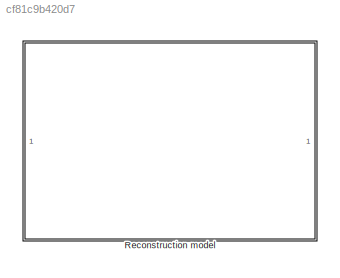
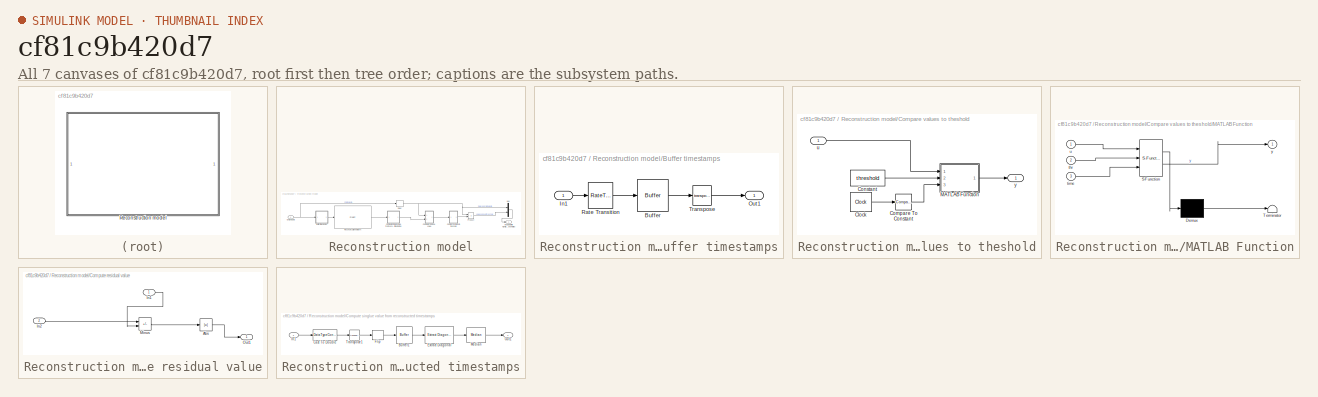
[diagram: thumbnail index - all 7 canvases of the model, root first then tree order]
MODEL slx_cf81c9b420d7
KIND library
CONFIG AbsTol = auto
CONFIG EnableMultiTasking = off
CONFIG FixedStep = auto
CONFIG MaxStep = auto
CONFIG MinStep = auto
CONFIG RelTol = 1e-3
CONFIG SampleTimeConstraint = Unconstrained
CONFIG SolverName = VariableStepAuto
CONFIG StartTime = 0.0
CONFIG StopTime = 10.0
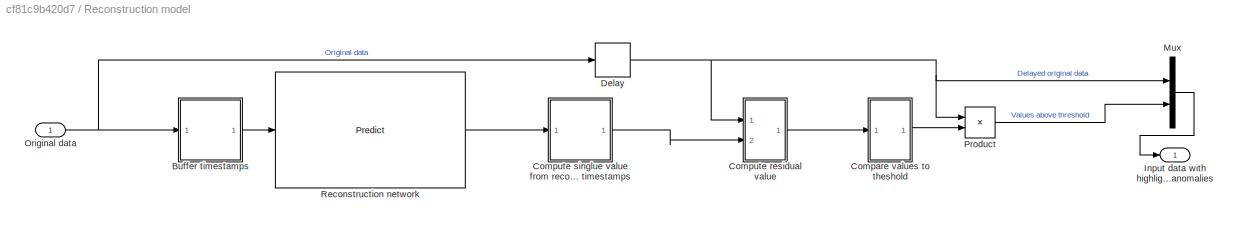
BLOCK [SubSystem] Reconstruction model
  Ports = [1, 1]
  RequestExecContextInheritance = off
BLOCK [SubSystem] Reconstruction model/Buffer timestamps
  Ports = [1, 1]
  RequestExecContextInheritance = off
BLOCK [Buffer] Reconstruction model/Buffer timestamps/Buffer
  N = BufferLength
  OutputFrames = off
  V = BufferLength-1
BLOCK [Inport] Reconstruction model/Buffer timestamps/In1
BLOCK [Outport] Reconstruction model/Buffer timestamps/Out1
BLOCK [RateTransition] Reconstruction model/Buffer timestamps/Rate Transition
  OutPortSampleTime = 1
BLOCK [Math] Reconstruction model/Buffer timestamps/Transpose
  Operator = transpose
  Ports = [1, 1]
BLOCK [SubSystem] Reconstruction model/Compare values to theshold
  Ports = [1, 1]
  RequestExecContextInheritance = off
BLOCK [Clock] Reconstruction model/Compare values to theshold/Clock
  DisplayTime = on
BLOCK [Reference] Reconstruction model/Compare values to theshold/Compare To Constant  REF=simulink/Logic and Bit
Operations/Compare
To Constant
  Ports = [1, 1]
  SourceBlock = simulink/Logic and Bit\nOperations/Compare\nTo Constant
  SourceProductBaseCode = SL
  SourceType = Compare To Constant
BLOCK [Constant] Reconstruction model/Compare values to theshold/Constant
  Value = threshold
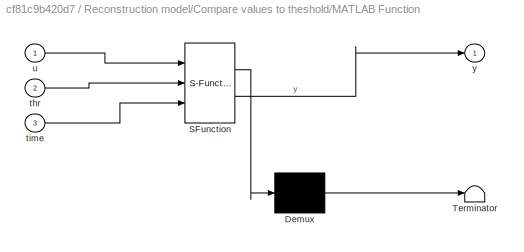
BLOCK [SubSystem] Reconstruction model/Compare values to theshold/MATLAB Function
  ErrorFcn = Stateflow.Translate.translate
  PermitHierarchicalResolution = ExplicitOnly
  Ports = [3, 1]
  RequestExecContextInheritance = off
  SFBlockType = MATLAB Function
  TreatAsAtomicUnit = on
BLOCK [Demux] Reconstruction model/Compare values to theshold/MATLAB Function/ Demux 
  Outputs = 1
  Ports = [1, 1]
BLOCK [S-Function] Reconstruction model/Compare values to theshold/MATLAB Function/ SFunction 
  EnableBusSupport = on
  FunctionName = sf_sfun
  PortCounts = [3 2]
  Ports = [3, 2]
  SFcnIsStateOwnerBlock = off
  SFunctionDeploymentMode = off
  Tag = Stateflow S-Function 1
BLOCK [Terminator] Reconstruction model/Compare values to theshold/MATLAB Function/ Terminator 
BLOCK [Inport] Reconstruction model/Compare values to theshold/MATLAB Function/thr
  Port = 2
BLOCK [Inport] Reconstruction model/Compare values to theshold/MATLAB Function/time
  Port = 3
BLOCK [Inport] Reconstruction model/Compare values to theshold/MATLAB Function/u
BLOCK [Outport] Reconstruction model/Compare values to theshold/MATLAB Function/y
BLOCK [Inport] Reconstruction model/Compare values to theshold/u
BLOCK [Outport] Reconstruction model/Compare values to theshold/y
BLOCK [SubSystem] Reconstruction model/Compute residual value
  Ports = [2, 1]
  RequestExecContextInheritance = off
BLOCK [Abs] Reconstruction model/Compute residual value/Abs
  SaturateOnIntegerOverflow = off
BLOCK [Inport] Reconstruction model/Compute residual value/In1
BLOCK [Inport] Reconstruction model/Compute residual value/In2
  Port = 2
BLOCK [Sum] Reconstruction model/Compute residual value/Minus
  IconShape = rectangular
  Inputs = +-
  Ports = [2, 1]
BLOCK [Outport] Reconstruction model/Compute residual value/Out1
BLOCK [SubSystem] Reconstruction model/Compute singlue value from reconstructed timestamps
  Ports = [1, 1]
  RequestExecContextInheritance = off
BLOCK [Buffer] Reconstruction model/Compute singlue value from reconstructed timestamps/Buffer1
  N = BufferLength
  OutputFrames = off
  V = BufferLength-1
BLOCK [DataTypeConversion] Reconstruction model/Compute singlue value from reconstructed timestamps/Cast To Double
  OutDataTypeStr = double
  RndMeth = Floor
  SaturateOnIntegerOverflow = off
BLOCK [Reference] Reconstruction model/Compute singlue value from reconstructed timestamps/Extract Diagonal  REF=matrix_library/Extract Diagonal
  Ports = [1, 1]
  SourceBlock = matrix_library/Extract Diagonal
  SourceProductBaseCode = SL
  SourceType = Extract Diagonal
BLOCK [DSPFlip] Reconstruction model/Compute singlue value from reconstructed timestamps/Flip
BLOCK [Inport] Reconstruction model/Compute singlue value from reconstructed timestamps/In1
BLOCK [Reference] Reconstruction model/Compute singlue value from reconstructed timestamps/Median  REF=dspstat3/Median
  Ports = [1, 1]
  SourceBlock = dspstat3/Median
  SourceProductBaseCode = DS
  SourceType = Median
BLOCK [Outport] Reconstruction model/Compute singlue value from reconstructed timestamps/Out1
BLOCK [Math] Reconstruction model/Compute singlue value from reconstructed timestamps/Transpose1
  Operator = transpose
  Ports = [1, 1]
BLOCK [Delay] Reconstruction model/Delay
  DelayLength = BufferLength
  InputPortMap = u0
  Ports = [1, 1]
BLOCK [Outport] Reconstruction model/Input data with highlighted anomalies
BLOCK [Mux] Reconstruction model/Mux
  DisplayOption = bar
  Inputs = 2
  Ports = [2, 1]
BLOCK [Inport] Reconstruction model/Original data
BLOCK [Product] Reconstruction model/Product
  Ports = [2, 1]
BLOCK [Reference] Reconstruction model/Reconstruction network  REF=deeplib/Predict
  Ports = [1, 1]
  SourceBlock = deeplib/Predict
  SourceProductBaseCode = NN
  SourceType = Predict
LINE Reconstruction model/Buffer timestamps/Buffer:1 -> Reconstruction model/Buffer timestamps/Transpose:1
LINE Reconstruction model/Buffer timestamps/In1:1 -> Reconstruction model/Buffer timestamps/Rate Transition:1
LINE Reconstruction model/Buffer timestamps/Rate Transition:1 -> Reconstruction model/Buffer timestamps/Buffer:1
LINE Reconstruction model/Buffer timestamps/Transpose:1 -> Reconstruction model/Buffer timestamps/Out1:1
LINE Reconstruction model/Buffer timestamps:1 -> Reconstruction model/Reconstruction network:1
LINE Reconstruction model/Compare values to theshold/Clock:1 -> Reconstruction model/Compare values to theshold/Compare To Constant:1
LINE Reconstruction model/Compare values to theshold/Compare To Constant:1 -> Reconstruction model/Compare values to theshold/MATLAB Function:3
LINE Reconstruction model/Compare values to theshold/Constant:1 -> Reconstruction model/Compare values to theshold/MATLAB Function:2
LINE Reconstruction model/Compare values to theshold/MATLAB Function:1 -> Reconstruction model/Compare values to theshold/y:1
LINE Reconstruction model/Compare values to theshold/u:1 -> Reconstruction model/Compare values to theshold/MATLAB Function:1
LINE Reconstruction model/Compare values to theshold:1 -> Reconstruction model/Product:2
LINE Reconstruction model/Compute residual value/Abs:1 -> Reconstruction model/Compute residual value/Out1:1
LINE Reconstruction model/Compute residual value/In1:1 -> Reconstruction model/Compute residual value/Minus:2
LINE Reconstruction model/Compute residual value/In2:1 -> Reconstruction model/Compute residual value/Minus:1
LINE Reconstruction model/Compute residual value/Minus:1 -> Reconstruction model/Compute residual value/Abs:1
LINE Reconstruction model/Compute residual value:1 -> Reconstruction model/Compare values to theshold:1
LINE Reconstruction model/Compute singlue value from reconstructed timestamps/Buffer1:1 -> Reconstruction model/Compute singlue value from reconstructed timestamps/Extract Diagonal:1
LINE Reconstruction model/Compute singlue value from reconstructed timestamps/Cast To Double:1 -> Reconstruction model/Compute singlue value from reconstructed timestamps/Transpose1:1
LINE Reconstruction model/Compute singlue value from reconstructed timestamps/Extract Diagonal:1 -> Reconstruction model/Compute singlue value from reconstructed timestamps/Median:1
LINE Reconstruction model/Compute singlue value from reconstructed timestamps/Flip:1 -> Reconstruction model/Compute singlue value from reconstructed timestamps/Buffer1:1
LINE Reconstruction model/Compute singlue value from reconstructed timestamps/In1:1 -> Reconstruction model/Compute singlue value from reconstructed timestamps/Cast To Double:1
LINE Reconstruction model/Compute singlue value from reconstructed timestamps/Median:1 -> Reconstruction model/Compute singlue value from reconstructed timestamps/Out1:1
LINE Reconstruction model/Compute singlue value from reconstructed timestamps/Transpose1:1 -> Reconstruction model/Compute singlue value from reconstructed timestamps/Flip:1
LINE Reconstruction model/Compute singlue value from reconstructed timestamps:1 -> Reconstruction model/Compute residual value:2
NET Reconstruction model/Delay:1 -> Reconstruction model/Compute residual value:1, Reconstruction model/Mux:1, Reconstruction model/Product:1
LINE Reconstruction model/Mux:1 -> Reconstruction model/Input data with highlighted anomalies:1
NET Reconstruction model/Original data:1 -> Reconstruction model/Buffer timestamps:1, Reconstruction model/Delay:1
LINE Reconstruction model/Product:1 -> Reconstruction model/Mux:2
LINE Reconstruction model/Reconstruction network:1 -> Reconstruction model/Compute singlue value from reconstructed timestamps:1
note: NET lines group one-source signal fan-out (src -> all destinations, sorted); 1:1 wires keep LINE
CHART Reconstruction model/Compare values to theshold/MATLAB Function states=1 transitions=1
  STATE_LABEL 'eML_blk_kernel()'
  STATE_LABEL 'SCRIPT:\nfunction y = fcn(u,thr, time)\ny = NaN;\nif time == 1\n    if u > thr\n    y = 1;\n    end\nend\n\n\n'
CHART  states=0 transitions=0
